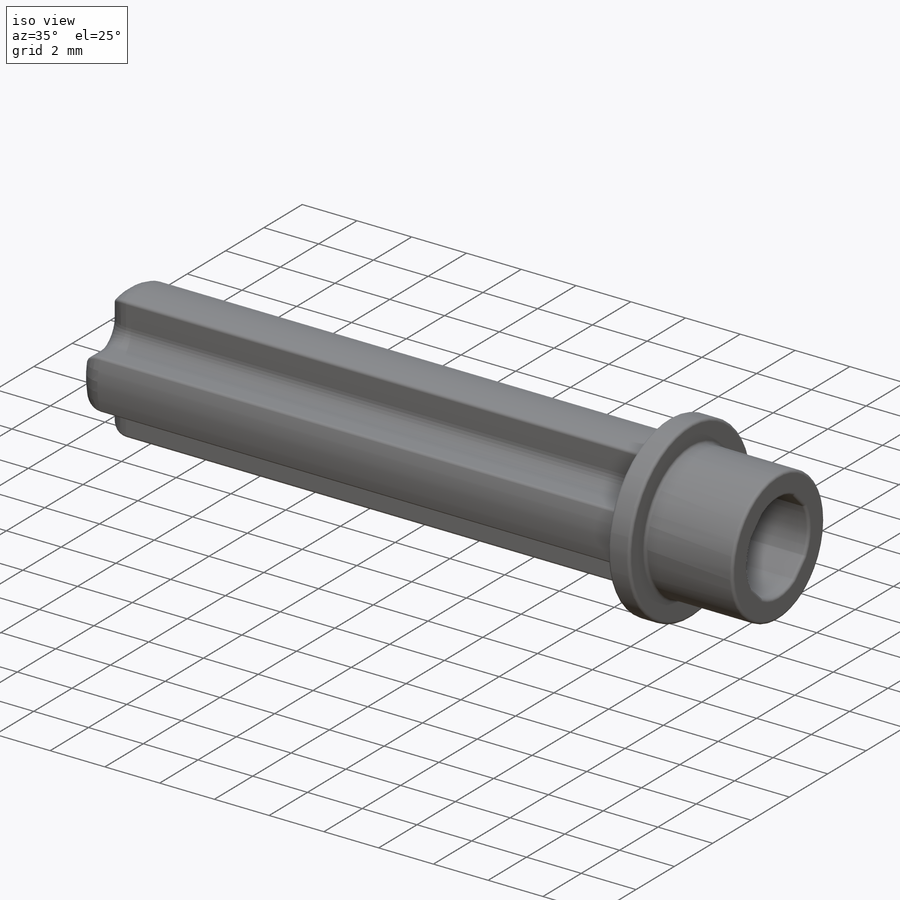
[diagram: iso view]
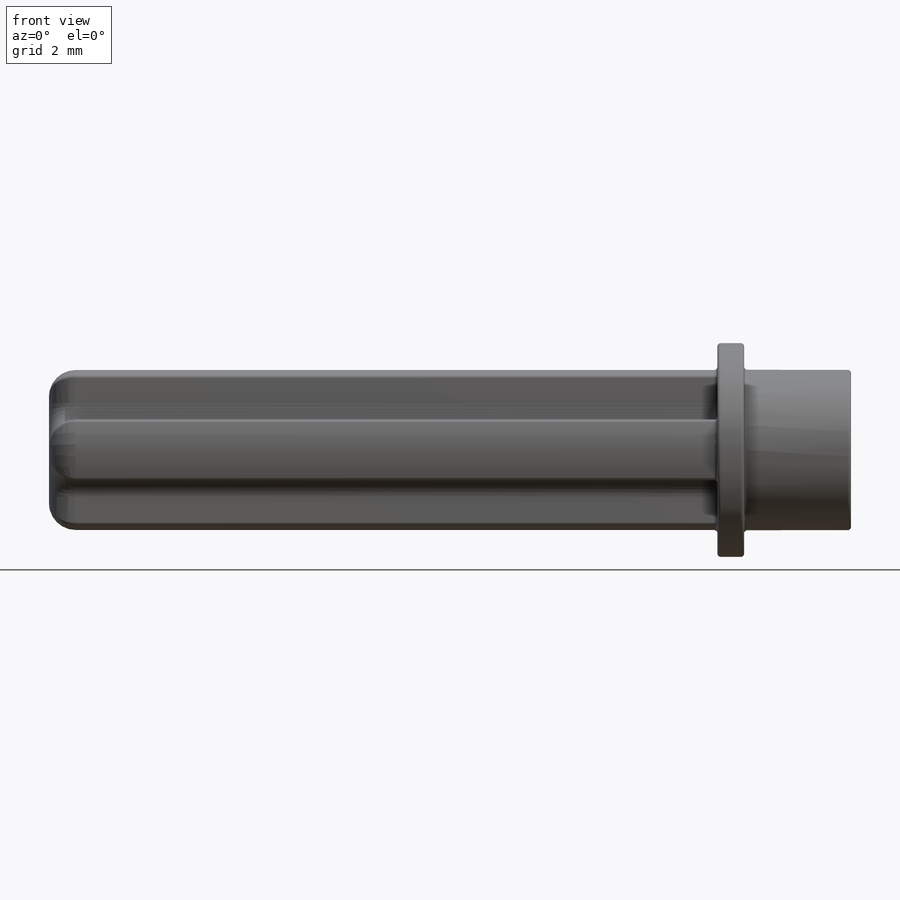
[diagram: front view]
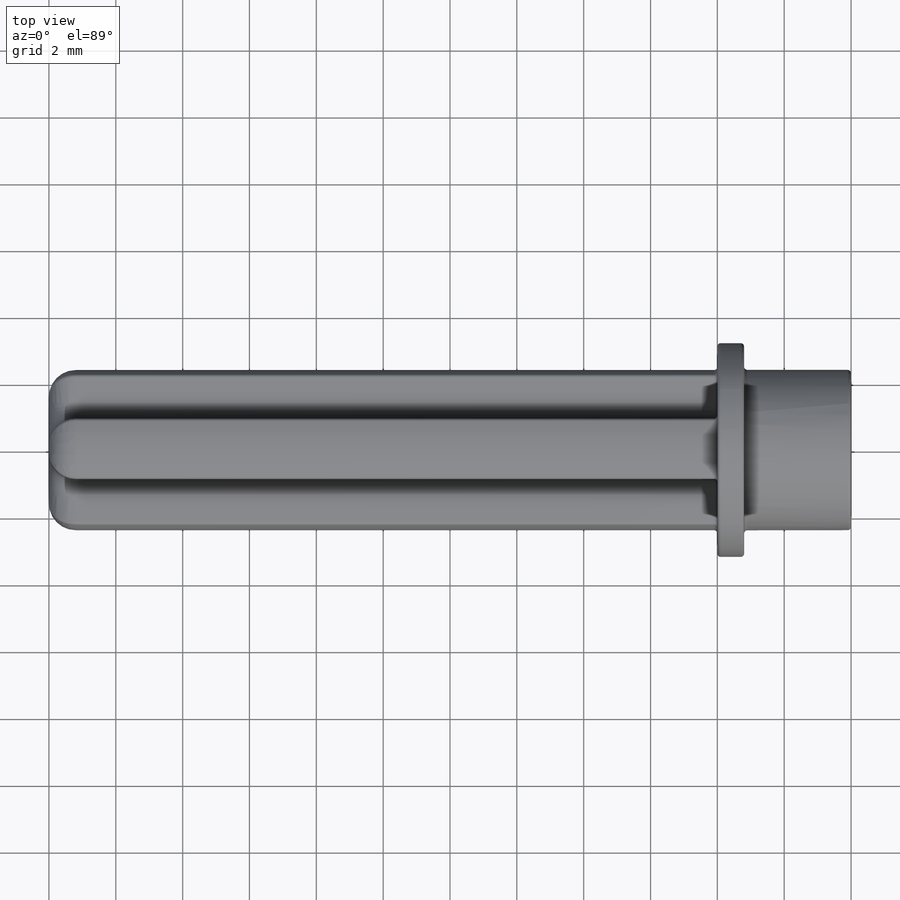
[diagram: top view]
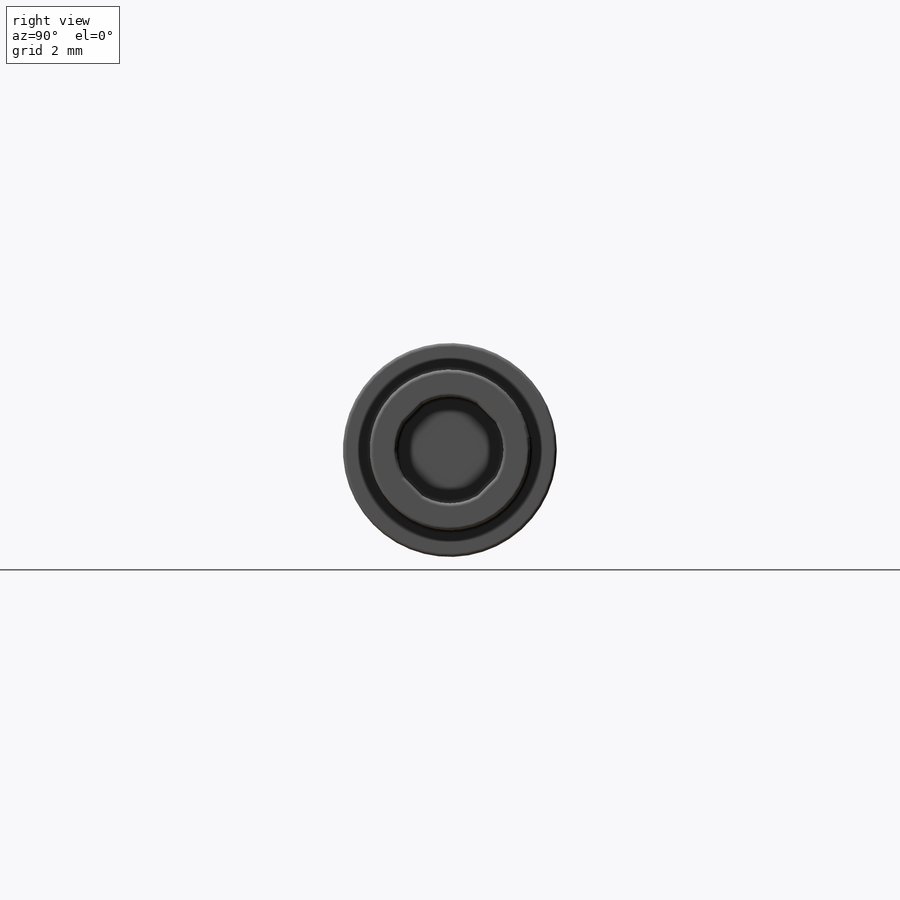
[diagram: right view]
SOLIDWORKS PART (.sldprt)
format: sldprt  version: not decoded by parser v0  size: 500,224 bytes
history: native  units: mm
features: plane x3, sketch x3, extrude x2, fillet x2, material x1, cut_extrude x1 (+10 scaffold rows collapsed)
feature tree (22):
  scaffold x10  (default folders/planes/origin — collapsed)
  material  "PET"
  plane  "Alzado"
  plane  "Planta"
  plane  "Vista lateral"
  sketch  "Croquis1"  dims[c1.D1=4.8mm c1.D3=0.5mm c1.D2=1.8mm c2.D1=2.4mm c2.D2=2.4mm c3.D1=~1.517893mm c3.D2=~1.517893mm c4.D2=~18.434949deg c5.D2=4.8mm c6.D2=90.0deg c7.D2=4.8mm c8.D2=~36.869898deg c9.D2=4.8mm c10.D2=~36.869898deg c11.D2=~4.55368mm]
  extrude  "Saliente-Extruir1"  Depth=24mm
  sketch  "Croquis2"  dims[D1=6.4mm]
  extrude  "Saliente-Extruir2"  Depth=4mm
  sketch  "Croquis3"  dims[c1.D1=3.2mm c1.D2=3.1mm c1.D3=~4.384062mm c2.D2=3.1mm]
  cut_extrude  "Cortar-Extruir1"  Depth=3.2mm
  fillet  "Redondeo1"  Radius=0.1mm
  fillet  "Redondeo2"  Radius=0.8mm
decode coverage: 8 of 8 modeling features carry decoded parameters
note: ~ marks probable driven/reference dimensions
note: suppression state not decoded; provenance and decode notes live in map.json
